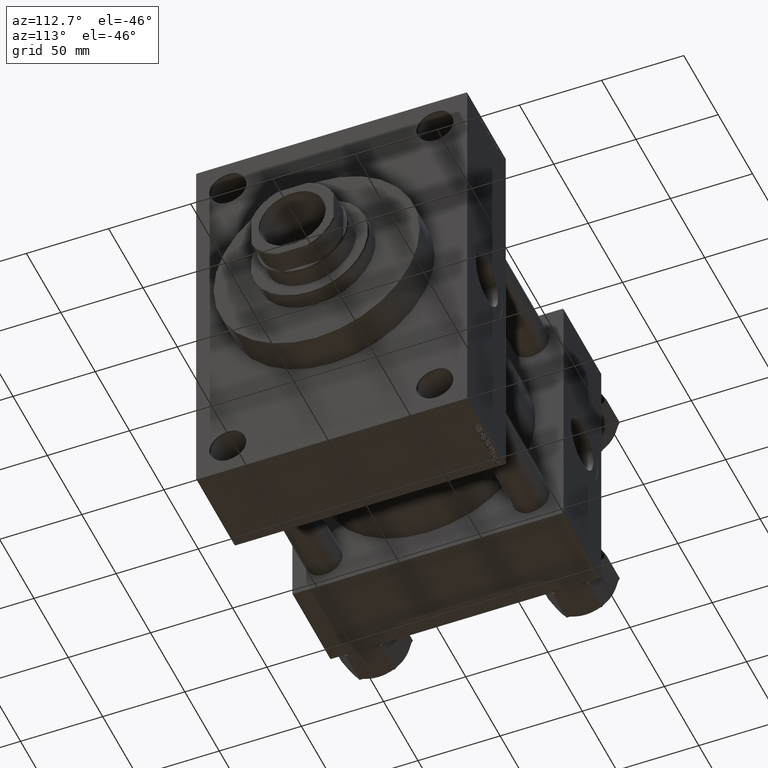
[diagram: clean part render]
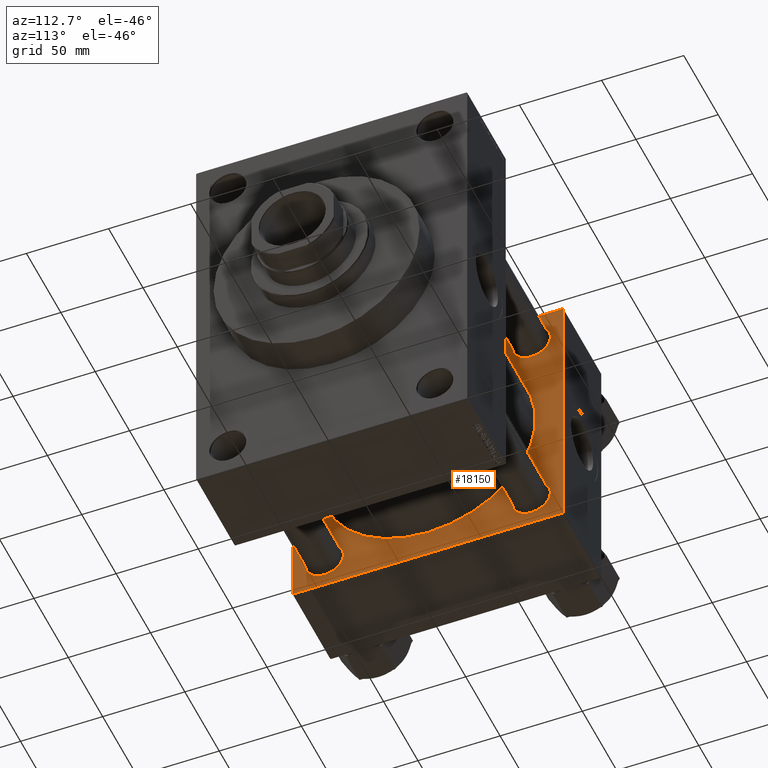
[diagram: same view with one face highlighted and labeled with its STEP entity id]
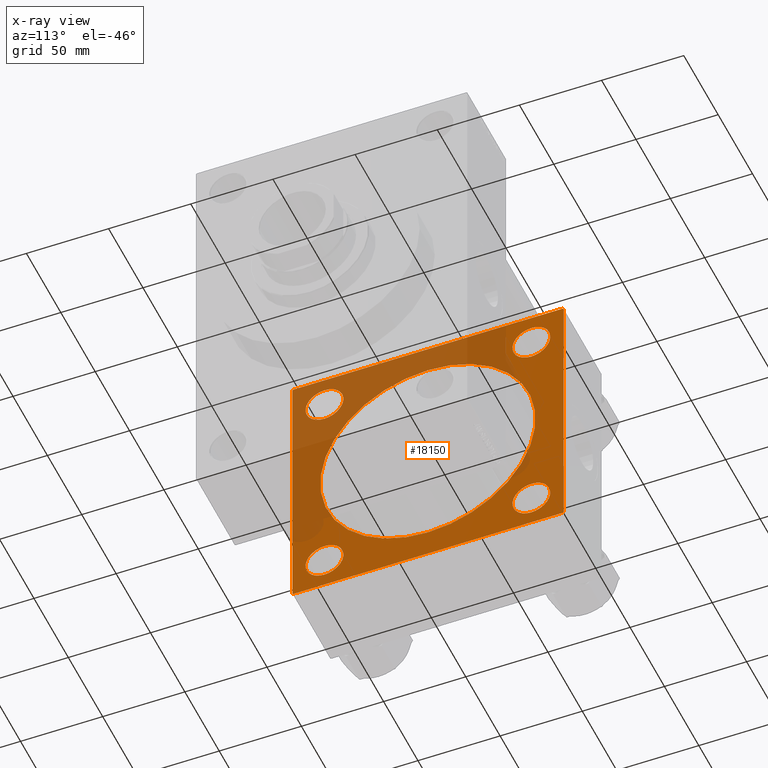
[diagram: x-ray of the same camera — body ghosted, the highlighted face saturated]
A machine part, auxiliary view. The second image highlights one B-rep face of the part: STEP entity #18150.
The next image is the same camera in x-ray: the body ghosted, the highlighted face saturated — about 42% of this face is hidden behind the body in this view.
In plain terms, the highlighted planar face has unit normal (-1, 0, 0).
Its self-contained STEP definition (entity closure, byte-faithful):
#682 = DIRECTION ( 'NONE',  ( -1.000000000000000000, 0.000000000000000000, 0.000000000000000000 ) ) ;
#1200 = CARTESIAN_POINT ( 'NONE',  ( 55.00000000000000000, 62.95000000000000284, 62.95000000000000284 ) ) ;
#1370 = DIRECTION ( 'NONE',  ( 0.000000000000000000, 0.000000000000000000, 1.000000000000000000 ) ) ;
#2612 = PLANE ( 'NONE',  #33700 ) ;
#3076 = ORIENTED_EDGE ( 'NONE', *, *, #39212, .T. ) ;
#3649 = ORIENTED_EDGE ( 'NONE', *, *, #40689, .T. ) ;
#4202 = CARTESIAN_POINT ( 'NONE',  ( 55.00000000000000000, 62.95000000000000284, -62.95000000000000284 ) ) ;
#4335 = CARTESIAN_POINT ( 'NONE',  ( 55.00000000000000000, 62.95000000000000284, -62.95000000000000284 ) ) ;
#4623 = VERTEX_POINT ( 'NONE', #45164 ) ;
#4714 = DIRECTION ( 'NONE',  ( -1.000000000000000000, 0.000000000000000000, 0.000000000000000000 ) ) ;
#5062 = DIRECTION ( 'NONE',  ( -1.000000000000000000, 0.000000000000000000, 0.000000000000000000 ) ) ;
#5269 = VERTEX_POINT ( 'NONE', #16669 ) ;
#5419 = EDGE_LOOP ( 'NONE', ( #42455, #28008, #8668, #3076, #11696, #35279, #43874, #3649 ) ) ;
#5900 = ORIENTED_EDGE ( 'NONE', *, *, #21206, .T. ) ;
#6182 = CARTESIAN_POINT ( 'NONE',  ( 55.00000000000000000, -82.00000000000000000, -82.50000000000000000 ) ) ;
#6644 = VERTEX_POINT ( 'NONE', #14102 ) ;
#6807 = LINE ( 'NONE', #26302, #11111 ) ;
#7215 = AXIS2_PLACEMENT_3D ( 'NONE', #16293, #43068, #28033 ) ;
#7320 = AXIS2_PLACEMENT_3D ( 'NONE', #4202, #682, #12186 ) ;
#7507 = DIRECTION ( 'NONE',  ( 0.000000000000000000, 0.000000000000000000, 1.000000000000000000 ) ) ;
#7618 = ORIENTED_EDGE ( 'NONE', *, *, #45787, .F. ) ;
#7626 = EDGE_LOOP ( 'NONE', ( #5900, #10771 ) ) ;
#8668 = ORIENTED_EDGE ( 'NONE', *, *, #20058, .F. ) ;
#9158 = EDGE_CURVE ( 'NONE', #16281, #10478, #29486, .T. ) ;
#9303 = EDGE_LOOP ( 'NONE', ( #35128, #7618 ) ) ;
#9515 = CARTESIAN_POINT ( 'NONE',  ( 55.00000000000000000, 82.00000000000005684, 82.50000000000002842 ) ) ;
#9568 = CARTESIAN_POINT ( 'NONE',  ( 55.00000000000000000, 62.95000000000000284, 74.44999999999998863 ) ) ;
#10104 = FACE_BOUND ( 'NONE', #25937, .T. ) ;
#10313 = AXIS2_PLACEMENT_3D ( 'NONE', #19909, #27888, #31408 ) ;
#10478 = VERTEX_POINT ( 'NONE', #9568 ) ;
#10771 = ORIENTED_EDGE ( 'NONE', *, *, #38152, .T. ) ;
#11017 = CARTESIAN_POINT ( 'NONE',  ( 54.99999999999999289, -2.602085213965210642E-15, 0.000000000000000000 ) ) ;
#11111 = VECTOR ( 'NONE', #48359, 1000.000000000000000 ) ;
#11696 = ORIENTED_EDGE ( 'NONE', *, *, #37140, .T. ) ;
#11767 = EDGE_CURVE ( 'NONE', #5269, #19247, #47162, .T. ) ;
#11971 = CARTESIAN_POINT ( 'NONE',  ( 54.99999999999999289, 5.419351320449953395E-15, -65.50000000000001421 ) ) ;
#12186 = DIRECTION ( 'NONE',  ( 0.000000000000000000, 0.000000000000000000, 1.000000000000000000 ) ) ;
#12376 = EDGE_CURVE ( 'NONE', #24915, #34447, #15253, .T. ) ;
#13588 = ORIENTED_EDGE ( 'NONE', *, *, #33606, .T. ) ;
#13589 = VERTEX_POINT ( 'NONE', #48225 ) ;
#13613 = DIRECTION ( 'NONE',  ( 0.000000000000000000, -1.682156097916903588E-16, -1.000000000000000000 ) ) ;
#13855 = CIRCLE ( 'NONE', #26637, 11.49999999999998224 ) ;
#14102 = CARTESIAN_POINT ( 'NONE',  ( 55.00000000000000000, 62.95000000000000284, -74.44999999999998863 ) ) ;
#14355 = EDGE_CURVE ( 'NONE', #6644, #15813, #22504, .T. ) ;
#14398 = CIRCLE ( 'NONE', #7215, 11.49999999999998224 ) ;
#14831 = DIRECTION ( 'NONE',  ( 0.000000000000000000, 0.000000000000000000, 1.000000000000000000 ) ) ;
#15253 = CIRCLE ( 'NONE', #46416, 65.50000000000001421 ) ;
#15480 = DIRECTION ( 'NONE',  ( 0.000000000000000000, 0.000000000000000000, 1.000000000000000000 ) ) ;
#15623 = EDGE_LOOP ( 'NONE', ( #41308, #13588 ) ) ;
#15813 = VERTEX_POINT ( 'NONE', #17301 ) ;
#16281 = VERTEX_POINT ( 'NONE', #22096 ) ;
#16293 = CARTESIAN_POINT ( 'NONE',  ( 55.00000000000000000, -62.94999999999998153, 62.95000000000001705 ) ) ;
#16385 = DIRECTION ( 'NONE',  ( -1.000000000000000000, 0.000000000000000000, 0.000000000000000000 ) ) ;
#16669 = CARTESIAN_POINT ( 'NONE',  ( 55.00000000000000000, -82.49999999999997158, 82.00000000000001421 ) ) ;
#17301 = CARTESIAN_POINT ( 'NONE',  ( 55.00000000000000000, 62.95000000000000284, -51.45000000000002416 ) ) ;
#18150 = ADVANCED_FACE ( 'NONE', ( #25132, #10104, #25371, #22114, #40635, #37380 ), #2612, .F. ) ;
#18357 = DIRECTION ( 'NONE',  ( -1.000000000000000000, 0.000000000000000000, 0.000000000000000000 ) ) ;
#18594 = CARTESIAN_POINT ( 'NONE',  ( 55.00000000000000000, 82.50000000000002842, 82.50000000000002842 ) ) ;
#18817 = CARTESIAN_POINT ( 'NONE',  ( 54.99999999999999289, -2.602085213965210642E-15, 0.000000000000000000 ) ) ;
#19070 = EDGE_CURVE ( 'NONE', #4623, #48347, #19332, .T. ) ;
#19134 = EDGE_CURVE ( 'NONE', #34329, #5269, #29581, .T. ) ;
#19247 = VERTEX_POINT ( 'NONE', #46842 ) ;
#19289 = DIRECTION ( 'NONE',  ( 0.000000000000000000, 0.000000000000000000, 1.000000000000000000 ) ) ;
#19315 = DIRECTION ( 'NONE',  ( 0.000000000000000000, 0.000000000000000000, 1.000000000000000000 ) ) ;
#19332 = CIRCLE ( 'NONE', #29699, 11.49999999999998224 ) ;
#19519 = CARTESIAN_POINT ( 'NONE',  ( 55.00000000000000000, -62.94999999999998153, -62.95000000000001705 ) ) ;
#19568 = EDGE_CURVE ( 'NONE', #48347, #4623, #21781, .T. ) ;
#19909 = CARTESIAN_POINT ( 'NONE',  ( 55.00000000000000000, 62.95000000000000284, 62.95000000000000284 ) ) ;
#20058 = EDGE_CURVE ( 'NONE', #26254, #43004, #29590, .T. ) ;
#20209 = EDGE_CURVE ( 'NONE', #15813, #6644, #48964, .T. ) ;
#20517 = CARTESIAN_POINT ( 'NONE',  ( 55.00000000000000000, -62.94999999999998153, 51.45000000000003837 ) ) ;
#21206 = EDGE_CURVE ( 'NONE', #28113, #13589, #13855, .T. ) ;
#21781 = CIRCLE ( 'NONE', #23367, 11.49999999999998224 ) ;
#21823 = CARTESIAN_POINT ( 'NONE',  ( 55.00000000000000000, -62.94999999999998153, -74.45000000000000284 ) ) ;
#22096 = CARTESIAN_POINT ( 'NONE',  ( 55.00000000000000000, 62.95000000000000284, 51.45000000000002416 ) ) ;
#22114 = FACE_BOUND ( 'NONE', #15623, .T. ) ;
#22421 = ORIENTED_EDGE ( 'NONE', *, *, #19568, .T. ) ;
#22477 = LINE ( 'NONE', #40994, #42452 ) ;
#22504 = CIRCLE ( 'NONE', #7320, 11.49999999999998224 ) ;
#23105 = DIRECTION ( 'NONE',  ( -0.000000000000000000, 0.7071067811865474617, 0.7071067811865474617 ) ) ;
#23367 = AXIS2_PLACEMENT_3D ( 'NONE', #19519, #34270, #7507 ) ;
#23878 = AXIS2_PLACEMENT_3D ( 'NONE', #1200, #4714, #15480 ) ;
#24143 = CARTESIAN_POINT ( 'NONE',  ( 55.00000000000000000, -82.49999999999997158, 82.50000000000001421 ) ) ;
#24915 = VERTEX_POINT ( 'NONE', #48130 ) ;
#25132 = FACE_BOUND ( 'NONE', #28235, .T. ) ;
#25263 = LINE ( 'NONE', #25501, #42348 ) ;
#25371 = FACE_BOUND ( 'NONE', #7626, .T. ) ;
#25501 = CARTESIAN_POINT ( 'NONE',  ( 55.00000000000000000, 82.50000000000002842, 82.50000000000002842 ) ) ;
#25650 = VECTOR ( 'NONE', #28547, 1000.000000000000114 ) ;
#25830 = DIRECTION ( 'NONE',  ( -0.000000000000000000, -0.7071067811865474617, -0.7071067811865474617 ) ) ;
#25937 = EDGE_LOOP ( 'NONE', ( #46843, #38222 ) ) ;
#26254 = VERTEX_POINT ( 'NONE', #42296 ) ;
#26302 = CARTESIAN_POINT ( 'NONE',  ( 55.00000000000000000, 82.50000000000002842, -82.49999999999997158 ) ) ;
#26637 = AXIS2_PLACEMENT_3D ( 'NONE', #46678, #16385, #1370 ) ;
#26714 = DIRECTION ( 'NONE',  ( 0.000000000000000000, 0.7071067811865376918, -0.7071067811865574537 ) ) ;
#27888 = DIRECTION ( 'NONE',  ( -1.000000000000000000, 0.000000000000000000, 0.000000000000000000 ) ) ;
#28008 = ORIENTED_EDGE ( 'NONE', *, *, #29029, .T. ) ;
#28033 = DIRECTION ( 'NONE',  ( 0.000000000000000000, 0.000000000000000000, 1.000000000000000000 ) ) ;
#28113 = VERTEX_POINT ( 'NONE', #20517 ) ;
#28154 = CARTESIAN_POINT ( 'NONE',  ( 55.00000000000000000, 82.50000000000002842, -82.00000000000000000 ) ) ;
#28235 = EDGE_LOOP ( 'NONE', ( #22421, #39988 ) ) ;
#28547 = DIRECTION ( 'NONE',  ( 0.000000000000000000, -0.7071067811865474617, 0.7071067811865474617 ) ) ;
#29029 = EDGE_CURVE ( 'NONE', #48260, #43004, #34861, .T. ) ;
#29486 = CIRCLE ( 'NONE', #10313, 11.49999999999998224 ) ;
#29581 = LINE ( 'NONE', #44861, #46550 ) ;
#29590 = LINE ( 'NONE', #18594, #32135 ) ;
#29699 = AXIS2_PLACEMENT_3D ( 'NONE', #49109, #48610, #14831 ) ;
#30493 = CARTESIAN_POINT ( 'NONE',  ( 55.00000000000000000, -81.99999999999997158, 82.50000000000001421 ) ) ;
#31408 = DIRECTION ( 'NONE',  ( 0.000000000000000000, 0.000000000000000000, 1.000000000000000000 ) ) ;
#31813 = DIRECTION ( 'NONE',  ( 0.000000000000000000, 0.000000000000000000, 1.000000000000000000 ) ) ;
#32135 = VECTOR ( 'NONE', #45873, 1000.000000000000000 ) ;
#33606 = EDGE_CURVE ( 'NONE', #10478, #16281, #45452, .T. ) ;
#33700 = AXIS2_PLACEMENT_3D ( 'NONE', #47905, #18357, #37630 ) ;
#34270 = DIRECTION ( 'NONE',  ( -1.000000000000000000, 0.000000000000000000, 0.000000000000000000 ) ) ;
#34329 = VERTEX_POINT ( 'NONE', #30493 ) ;
#34447 = VERTEX_POINT ( 'NONE', #11971 ) ;
#34655 = CIRCLE ( 'NONE', #41038, 65.50000000000001421 ) ;
#34861 = LINE ( 'NONE', #42874, #35566 ) ;
#35128 = ORIENTED_EDGE ( 'NONE', *, *, #12376, .F. ) ;
#35209 = EDGE_CURVE ( 'NONE', #48260, #41821, #6807, .T. ) ;
#35279 = ORIENTED_EDGE ( 'NONE', *, *, #19134, .T. ) ;
#35566 = VECTOR ( 'NONE', #23105, 1000.000000000000114 ) ;
#36802 = CARTESIAN_POINT ( 'NONE',  ( 55.00000000000000000, 82.00000000000005684, 82.50000000000002842 ) ) ;
#37140 = EDGE_CURVE ( 'NONE', #46901, #34329, #25263, .T. ) ;
#37380 = FACE_OUTER_BOUND ( 'NONE', #5419, .T. ) ;
#37630 = DIRECTION ( 'NONE',  ( 0.000000000000000000, 0.000000000000000000, 1.000000000000000000 ) ) ;
#37791 = AXIS2_PLACEMENT_3D ( 'NONE', #4335, #5062, #31813 ) ;
#38152 = EDGE_CURVE ( 'NONE', #13589, #28113, #14398, .T. ) ;
#38222 = ORIENTED_EDGE ( 'NONE', *, *, #20209, .T. ) ;
#38556 = DIRECTION ( 'NONE',  ( 1.000000000000000000, -0.000000000000000000, -0.000000000000000000 ) ) ;
#39212 = EDGE_CURVE ( 'NONE', #26254, #46901, #43589, .T. ) ;
#39988 = ORIENTED_EDGE ( 'NONE', *, *, #19070, .T. ) ;
#40529 = DIRECTION ( 'NONE',  ( 0.000000000000000000, -1.000000000000000000, -8.410780489584519171E-17 ) ) ;
#40635 = FACE_BOUND ( 'NONE', #9303, .T. ) ;
#40689 = EDGE_CURVE ( 'NONE', #19247, #41821, #22477, .T. ) ;
#40994 = CARTESIAN_POINT ( 'NONE',  ( 55.00000000000000000, -82.00000000000000000, -82.50000000000000000 ) ) ;
#41038 = AXIS2_PLACEMENT_3D ( 'NONE', #18817, #46094, #19315 ) ;
#41308 = ORIENTED_EDGE ( 'NONE', *, *, #9158, .T. ) ;
#41821 = VERTEX_POINT ( 'NONE', #6182 ) ;
#42144 = CARTESIAN_POINT ( 'NONE',  ( 55.00000000000000000, 82.00000000000005684, -82.49999999999997158 ) ) ;
#42296 = CARTESIAN_POINT ( 'NONE',  ( 55.00000000000000000, 82.50000000000002842, 82.00000000000005684 ) ) ;
#42348 = VECTOR ( 'NONE', #40529, 1000.000000000000000 ) ;
#42452 = VECTOR ( 'NONE', #26714, 999.9999999999998863 ) ;
#42455 = ORIENTED_EDGE ( 'NONE', *, *, #35209, .F. ) ;
#42874 = CARTESIAN_POINT ( 'NONE',  ( 55.00000000000000000, 82.50000000000002842, -82.00000000000000000 ) ) ;
#43004 = VERTEX_POINT ( 'NONE', #28154 ) ;
#43068 = DIRECTION ( 'NONE',  ( -1.000000000000000000, 0.000000000000000000, 0.000000000000000000 ) ) ;
#43589 = LINE ( 'NONE', #36802, #25650 ) ;
#43874 = ORIENTED_EDGE ( 'NONE', *, *, #11767, .T. ) ;
#44861 = CARTESIAN_POINT ( 'NONE',  ( 55.00000000000000000, -82.49999999999997158, 82.00000000000001421 ) ) ;
#45164 = CARTESIAN_POINT ( 'NONE',  ( 55.00000000000000000, -62.94999999999998153, -51.45000000000003837 ) ) ;
#45452 = CIRCLE ( 'NONE', #23878, 11.49999999999998224 ) ;
#45787 = EDGE_CURVE ( 'NONE', #34447, #24915, #34655, .T. ) ;
#45873 = DIRECTION ( 'NONE',  ( 0.000000000000000000, 0.000000000000000000, -1.000000000000000000 ) ) ;
#46094 = DIRECTION ( 'NONE',  ( 1.000000000000000000, -0.000000000000000000, -0.000000000000000000 ) ) ;
#46416 = AXIS2_PLACEMENT_3D ( 'NONE', #11017, #38556, #19289 ) ;
#46550 = VECTOR ( 'NONE', #25830, 1000.000000000000114 ) ;
#46678 = CARTESIAN_POINT ( 'NONE',  ( 55.00000000000000000, -62.94999999999998153, 62.95000000000001705 ) ) ;
#46842 = CARTESIAN_POINT ( 'NONE',  ( 55.00000000000000000, -82.50000000000000000, -81.99999999999998579 ) ) ;
#46843 = ORIENTED_EDGE ( 'NONE', *, *, #14355, .T. ) ;
#46901 = VERTEX_POINT ( 'NONE', #9515 ) ;
#47162 = LINE ( 'NONE', #24143, #48011 ) ;
#47905 = CARTESIAN_POINT ( 'NONE',  ( 55.00000000000000000, 0.000000000000000000, 0.000000000000000000 ) ) ;
#48011 = VECTOR ( 'NONE', #13613, 1000.000000000000000 ) ;
#48130 = CARTESIAN_POINT ( 'NONE',  ( 54.99999999999999289, -2.602085213965210642E-15, 65.50000000000001421 ) ) ;
#48225 = CARTESIAN_POINT ( 'NONE',  ( 55.00000000000000000, -62.94999999999998153, 74.45000000000000284 ) ) ;
#48260 = VERTEX_POINT ( 'NONE', #42144 ) ;
#48347 = VERTEX_POINT ( 'NONE', #21823 ) ;
#48359 = DIRECTION ( 'NONE',  ( 0.000000000000000000, -1.000000000000000000, -1.682156097916903588E-16 ) ) ;
#48610 = DIRECTION ( 'NONE',  ( -1.000000000000000000, 0.000000000000000000, 0.000000000000000000 ) ) ;
#48964 = CIRCLE ( 'NONE', #37791, 11.49999999999998224 ) ;
#49109 = CARTESIAN_POINT ( 'NONE',  ( 55.00000000000000000, -62.94999999999998153, -62.95000000000001705 ) ) ;